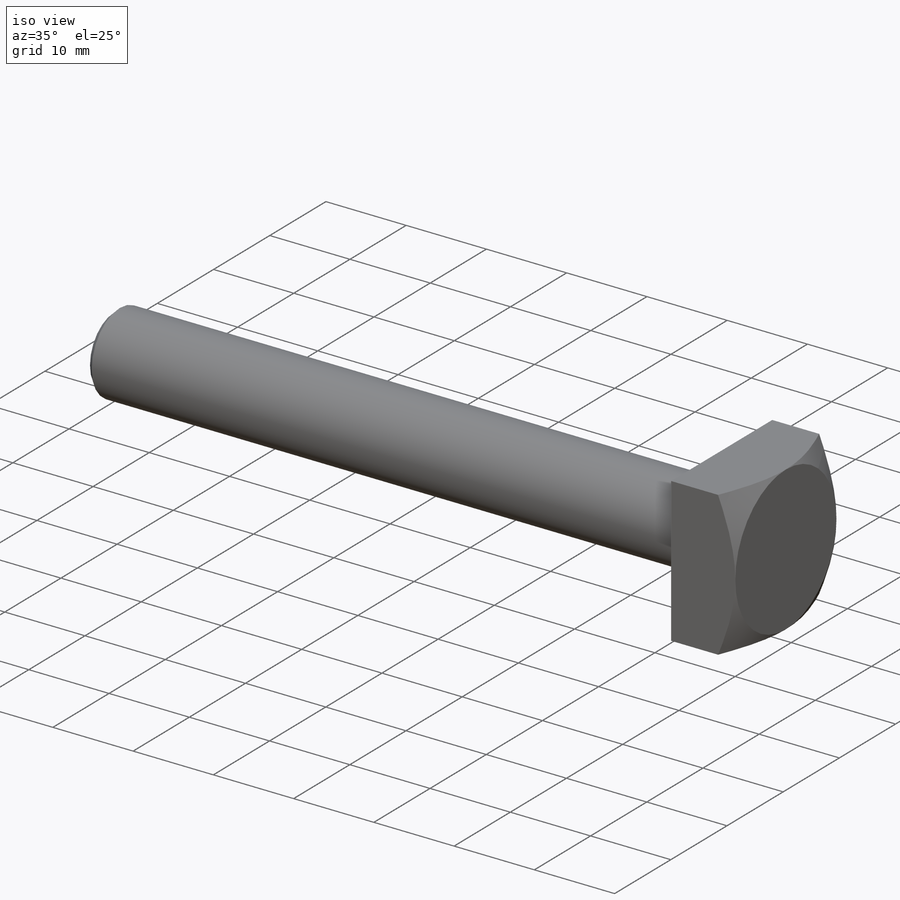
[diagram: iso view]
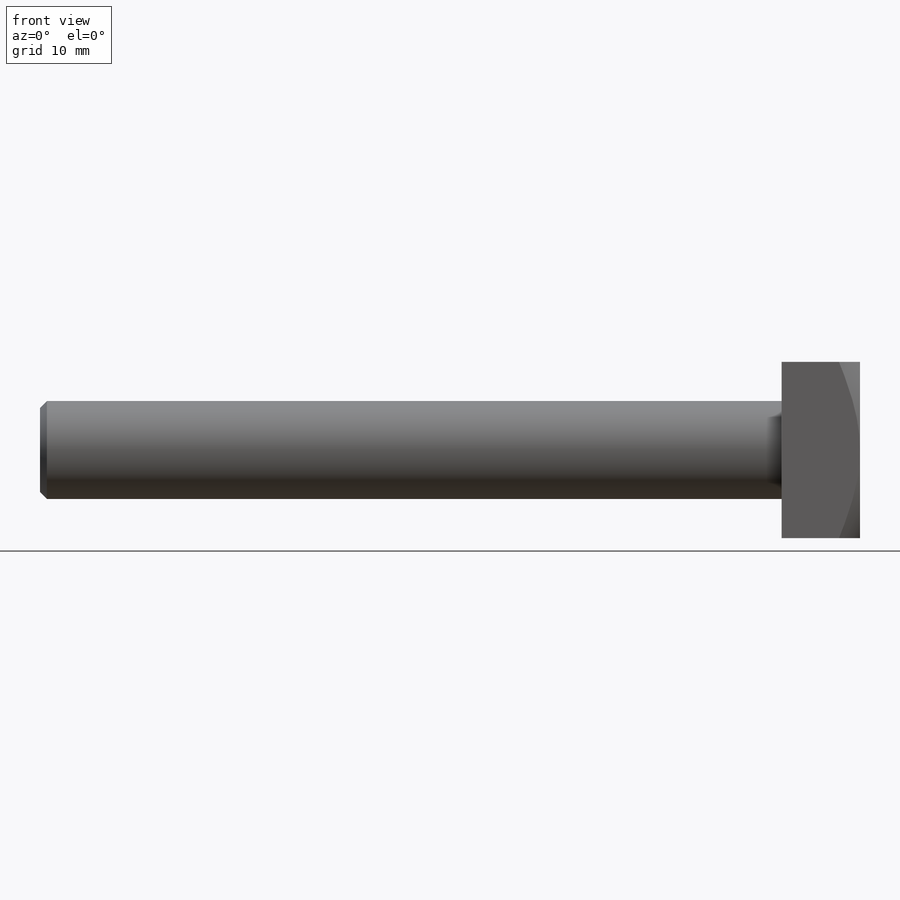
[diagram: front view]
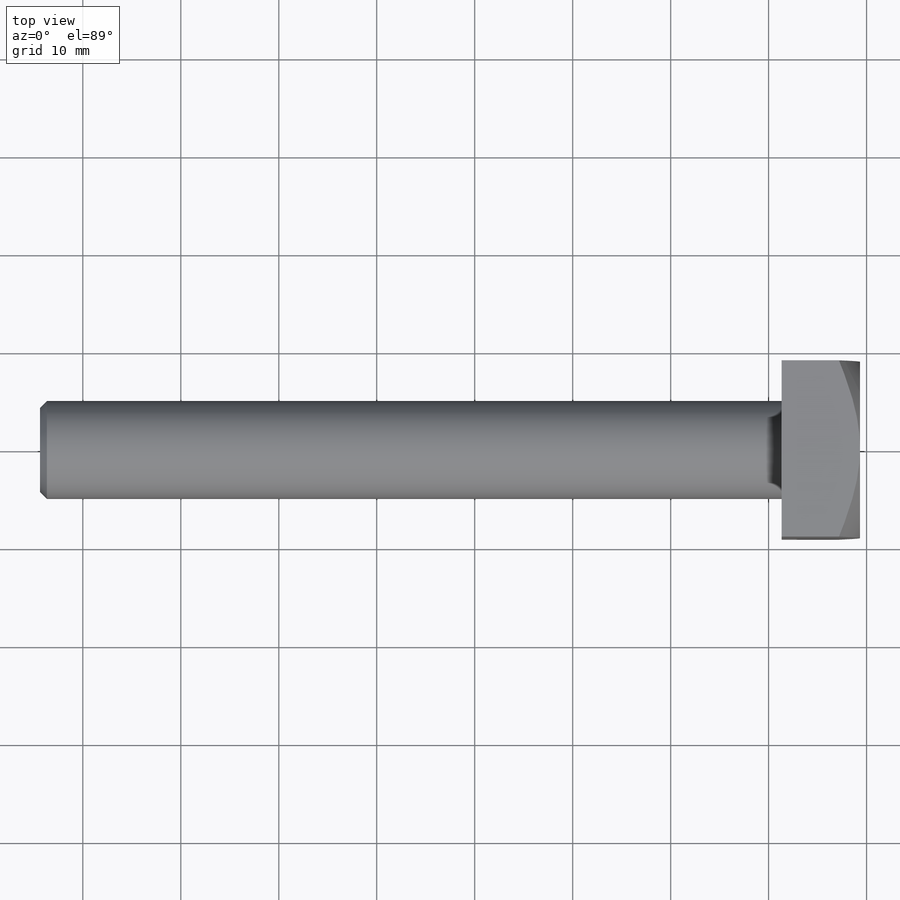
[diagram: top view]
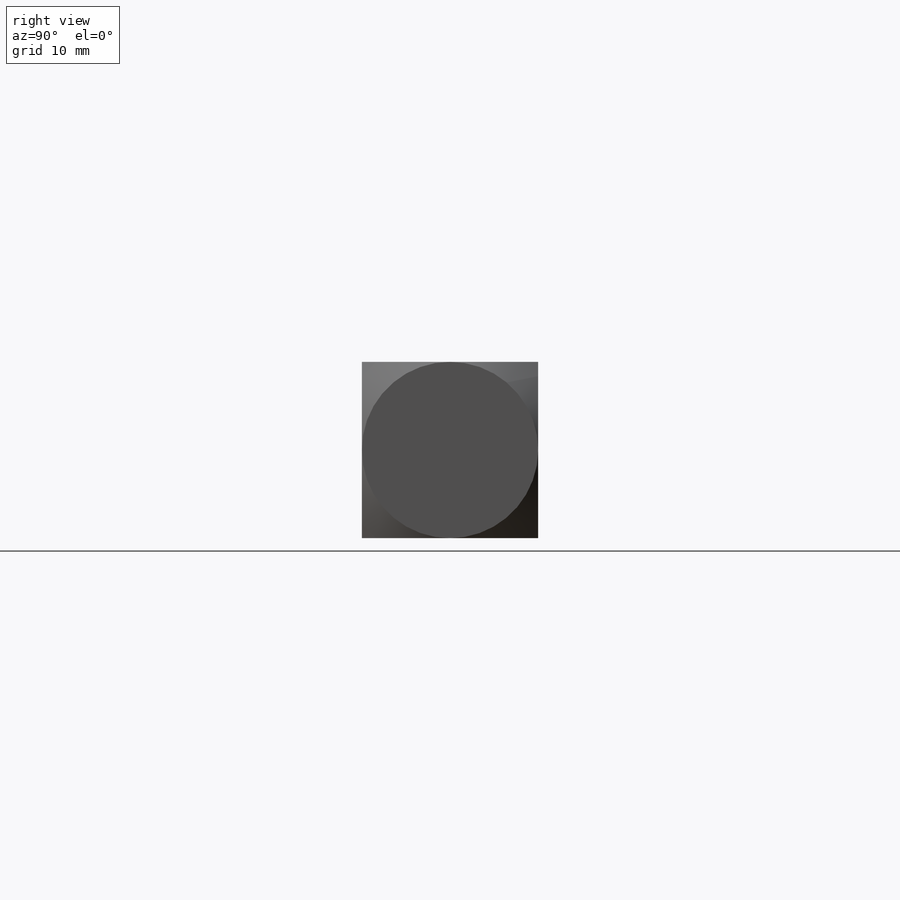
[diagram: right view]
SOLIDWORKS PART (.sldprt)
format: sldprt  version: not decoded by parser v0  size: 217,088 bytes
history: native  units: mm
features: sketch x4, material x1, revolve x1, thread x1, extrude x1, cut_extrude x1 (+13 scaffold rows collapsed)
feature tree (22):
  scaffold x13  (default folders/planes/origin — collapsed)
  material  "Material <not specified>"
  sketch  "Sketch1"  dims[c1.D1=~6.755555mm c1.D2=5.0mm c2.D1=~3.922522mm c3.D1=45.0deg c3.D3=1.0mm c3.D4=75.0mm c3.D5=6.5mm c3.D6=9.0mm c4.D1=~0.707107mm c5.D1=135.0deg]
  revolve  "Revolve1"  [1 undecoded]
  thread  "Cosmetic Thread1"  Diameter=26mm  [1 undecoded]
  sketch  "Sketch3"  dims[D1=26.0mm]
  sketch  "Sketch4"  dims[D1=18.0mm D2=18.0mm]
  extrude  "Boss-Extrude1"  Depth=8mm
  sketch  "Sketch5"
  cut_extrude  "Cut-Extrude3"  Depth=10mm
decode coverage: 6 of 8 modeling features carry decoded parameters
note: ~ marks probable driven/reference dimensions
note: 2 parameter values undecoded
note: suppression state not decoded; provenance and decode notes live in map.json
